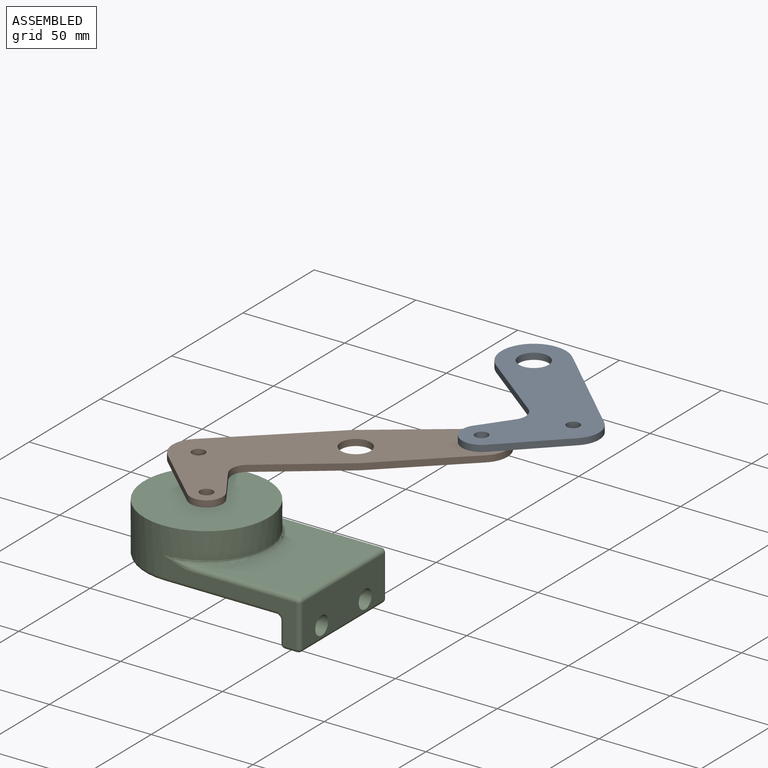
[diagram: assembled view]
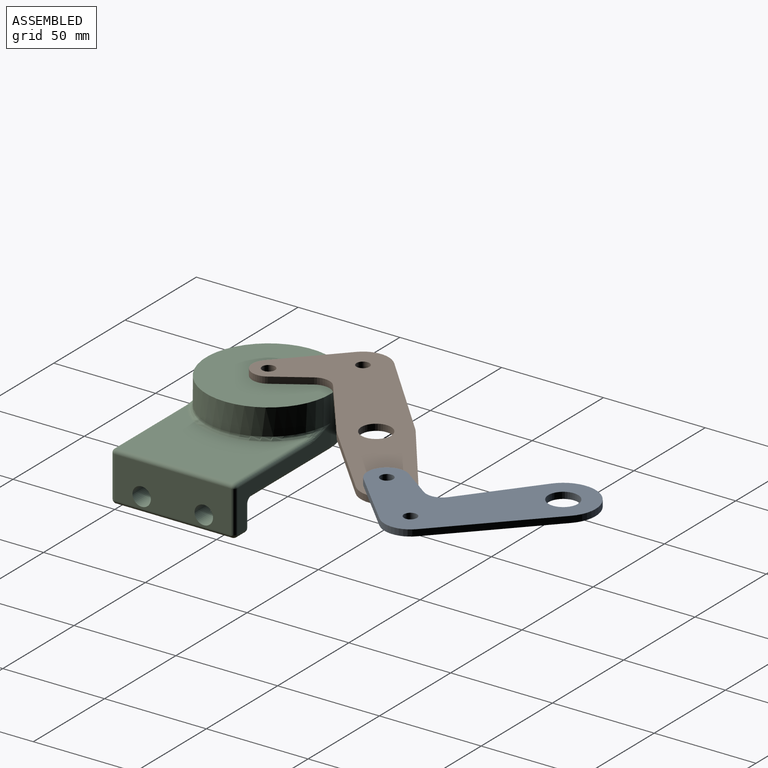
[diagram: assembled view, second angle]
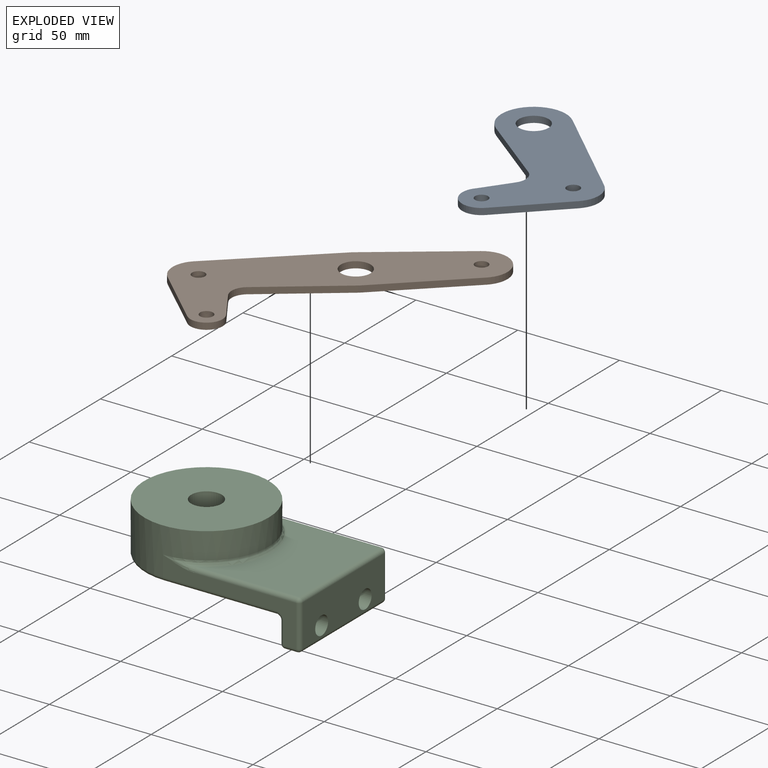
[diagram: exploded view]
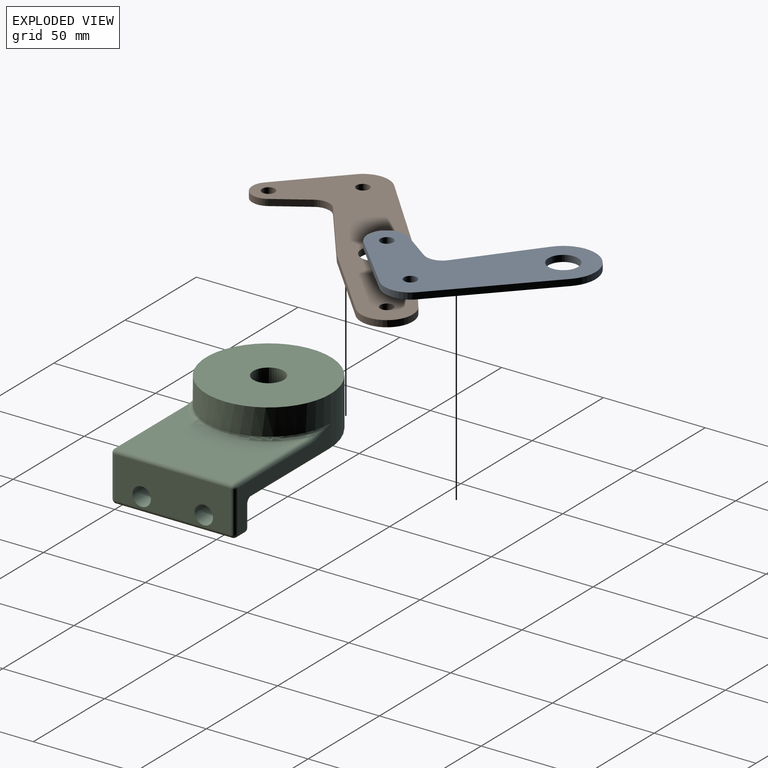
[diagram: exploded view, second angle]
ASSEMBLY  parts=3 mates=2
PART A: 13 faces, bbox 95.6x76.8x3.2 mm
  f0: cylinder r=15.88mm len=28.44mm, axis (0,0,1), area 163.4mm2, adj f1,f8,f11,f12
  f1: plane 34.43x26.57mm, normal (-0.79,0.61,0), area 138.1mm2, adj f0,f2,f11,f12
  f2: cylinder r=7.95mm len=10.93mm, axis (0,0,1), area 38.8mm2, adj f1,f3,f11,f12
  f3: plane 13.68x9.81mm, normal (0.58,0.81,0), area 53.4mm2, adj f2,f4,f11,f12
  f4: cylinder r=9.53mm len=16.22mm, axis (0,0,1), area 93.7mm2, adj f3,f5,f11,f12
  f5: plane 26.99x26.7mm, normal (-0.71,-0.7,0), area 120.5mm2, adj f4,f6,f11,f12
  f6: cylinder r=12.7mm len=18.26mm, axis (0,0,1), area 64.7mm2, adj f5,f8,f11,f12
  f7: cylinder r=3.17mm len=6.35mm, axis (0,0,1), area 63.3mm2, adj f11,f12
  f8: plane 46.08x43.57mm, normal (0.73,-0.69,0), area 201.4mm2, adj f0,f6,f11,f12
  f9: cylinder r=7.31mm len=14.62mm, axis (0,0,1), area 145.9mm2, adj f11,f12
  f10: cylinder r=3.17mm len=6.35mm, axis (0,0,1), area 63.3mm2, adj f11,f12
  f11: plane 95.62x76.84mm, normal (0,0,-1), area 2952.9mm2, adj f0,f1,f2,f3,f4,f5,f6,f7
  f12: plane 95.62x76.84mm, normal (0,0,1), area 2952.9mm2, adj f0,f1,f2,f3,f4,f5,f6,f7
PART B: 18 faces, bbox 123.1x113.2x3.2 mm
  f0: plane 46.62x43mm, normal (0.74,0.68,0), area 201.4mm2, adj f1,f14,f16,f17
  f1: cylinder r=12.7mm len=18.62mm, axis (0,0,-1), area 66.4mm2, adj f0,f2,f16,f17
  f2: plane 27.65x25.78mm, normal (-0.73,0.68,0), area 120mm2, adj f1,f3,f16,f17
  f3: cylinder r=7.94mm len=13.35mm, axis (0,0,-1), area 72.9mm2, adj f2,f4,f16,f17
  f4: plane 15.7x10.06mm, normal (0.54,-0.84,0), area 59.2mm2, adj f3,f5,f16,f17
  f5: cylinder r=7.95mm len=10.64mm, axis (0,0,-1), area 37.7mm2, adj f4,f6,f16,f17
  f6: plane 35.38x26.62mm, normal (-0.8,-0.6,0), area 140.6mm2, adj f5,f7,f16,f17
  f7: cylinder r=15.88mm len=3.18mm, axis (0,0,-1), area 5.7mm2, adj f6,f8,f16,f17
  f8: plane 36.83x34.84mm, normal (-0.73,-0.69,0), area 161mm2, adj f7,f9,f16,f17
  f9: cylinder r=12.7mm len=21.93mm, axis (0,0,-1), area 121.6mm2, adj f8,f10,f16,f17
  f10: plane 40.53x29.71mm, normal (0.81,0.59,0), area 159.6mm2, adj f9,f14,f16,f17
  f11: cylinder r=3.17mm len=6.35mm, axis (0,0,-1), area 63.3mm2, adj f16,f17
  f12: cylinder r=3.17mm len=6.35mm, axis (0,0,-1), area 63.3mm2, adj f16,f17
  f13: cylinder r=7.31mm len=14.62mm, axis (0,0,-1), area 145.9mm2, adj f16,f17
  f14: cylinder r=15.88mm len=3.18mm, axis (0,0,-1), area 7.1mm2, adj f0,f10,f16,f17
  f15: cylinder r=3.17mm len=6.35mm, axis (0,0,-1), area 63.3mm2, adj f16,f17
  f16: plane 123.1x113.18mm, normal (0,0,1), area 4135.3mm2, adj f0,f1,f2,f3,f4,f5,f6,f7
  f17: plane 123.1x113.18mm, normal (0,0,-1), area 4135.3mm2, adj f0,f1,f2,f3,f4,f5,f6,f7
PART C: 38 faces, bbox 100.3x73.5x39.4 mm
  f0: plane 83.81x57.08mm, normal (0,0,-1), area 4258mm2, adj f6,f12,f35,f36,f37
  f1: plane 57.08x49.64mm, normal (0,0,1), area 2147mm2, adj f15,f16,f18,f22
  f2: plane 65.27x24.41mm, normal (0,1,0), area 505.4mm2, adj f3,f14,f20,f22,f26,f31,f33,f35
  f3: cylinder r=30.54mm len=61.08mm, axis (0,0,-1), area 3454.1mm2, adj f2,f4,f7,f15,f37
  f4: plane 65.27x24.41mm, normal (0,-1,0), area 505.4mm2, adj f3,f13,f17,f18,f21,f32,f34,f36
  f5: plane 57.08x20.41mm, normal (1,0,0), area 1036.1mm2, adj f9,f10,f16,f21,f25,f26
  f6: cylinder r=7.5mm len=25mm, axis (0,0,-1), area 1178.1mm2, adj f0,f7
  f7: plane 61.08x61.08mm, normal (0,0,1), area 2753.7mm2, adj f3,f6
  f8: plane 57.08x10.41mm, normal (-1,0,0), area 465.2mm2, adj f9,f10,f12,f28,f31,f32
  f9: cylinder r=4.52mm len=10mm, axis (1,0,0), area 284.2mm2, adj f5,f8
  f10: cylinder r=4.54mm len=10mm, axis (1,0,0), area 285.6mm2, adj f5,f8
  f11: plane 57.08x6mm, normal (0,0,-1), area 342.5mm2, adj f13,f14,f25,f28
  f12: cylinder r=2mm len=57.08mm, axis (0,-1,0), area 179.3mm2, adj f0,f8,f33,f34
  f13: cylinder r=2mm len=6mm, axis (1,0,0), area 18.8mm2, adj f4,f11,f23,f30
  f14: cylinder r=2mm len=6mm, axis (-1,0,0), area 18.8mm2, adj f2,f11,f27,f29
  f15: torus R=32.54mm, axis (0,0,1), area 254.8mm2, adj f1,f3,f17,f20
  f16: cylinder r=2mm len=57.08mm, axis (0,-1,0), area 179.3mm2, adj f1,f5,f19,f24
  f17: bspline ~16.04x4mm, area 24.2mm2, adj f4,f15,f18
  f18: cylinder r=2mm len=49.64mm, axis (-1,0,0), area 156mm2, adj f1,f4,f17,f19
  f19: sphere r=2mm, area 6.3mm2, adj f16,f18,f21
  f20: bspline ~16.04x4mm, area 24.2mm2, adj f2,f15,f22
  f21: cylinder r=2mm len=20.41mm, axis (0,0,1), area 64.1mm2, adj f4,f5,f19,f23
  f22: cylinder r=2mm len=49.64mm, axis (1,0,0), area 156mm2, adj f1,f2,f20,f24
  f23: sphere r=2mm, area 6.3mm2, adj f13,f21,f25
  f24: sphere r=2mm, area 6.3mm2, adj f16,f22,f26
  f25: cylinder r=2mm len=57.08mm, axis (0,-1,0), area 179.3mm2, adj f5,f11,f23,f27
  f26: cylinder r=2mm len=20.41mm, axis (0,0,-1), area 64.1mm2, adj f2,f5,f24,f27
  f27: sphere r=2mm, area 6.3mm2, adj f14,f25,f26
  f28: cylinder r=2mm len=57.08mm, axis (0,-1,0), area 179.3mm2, adj f8,f11,f29,f30
  f29: sphere r=2mm, area 6.3mm2, adj f14,f28,f31
  f30: sphere r=2mm, area 6.3mm2, adj f13,f28,f32
  f31: cylinder r=2mm len=10.41mm, axis (0,0,-1), area 32.7mm2, adj f2,f8,f29,f33
  f32: cylinder r=2mm len=10.41mm, axis (0,0,1), area 32.7mm2, adj f4,f8,f30,f34
  f33: torus R=4mm, axis (0,-1,0), area 13.5mm2, adj f2,f12,f31,f35
  f34: torus R=4mm, axis (0,-1,0), area 13.5mm2, adj f4,f12,f32,f36
  f35: cylinder r=2mm len=55.27mm, axis (-1,0,0), area 173.6mm2, adj f0,f2,f33,f37
  f36: cylinder r=2mm len=55.27mm, axis (1,0,0), area 173.6mm2, adj f0,f4,f34,f37
  f37: torus R=28.54mm, axis (0,0,1), area 294.3mm2, adj f0,f3,f35,f36
PLACE A rot(axis=(0,0,1),90deg) t=(-0.87,169.74,41.02)mm
PLACE B rot(axis=(0,0,1),90deg) t=(-16.38,66.98,34.67)mm
PLACE C t=(-7.11,-2.95,9.67)mm fixed
MATE fastened C.f3 <-> B.f3  axis (0,0,1) through (-40.75,-2.95,34.67)mm
MATE fastened A.f4 <-> B.f9  axis (0,0,-1) through (22.64,99.51,37.84)mm
